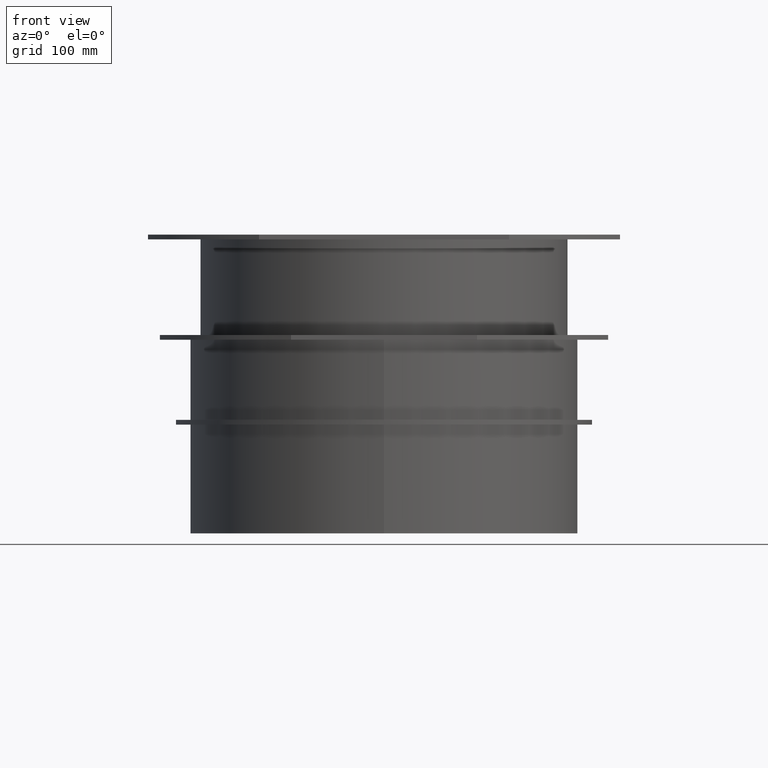
[diagram: clean part render]
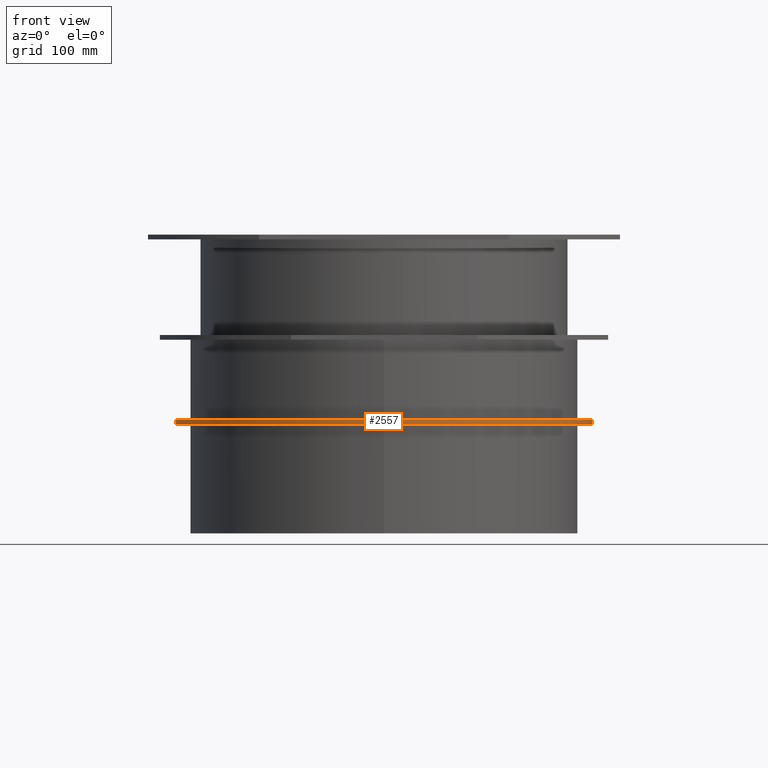
[diagram: same view with one face highlighted and labeled with its STEP entity id]
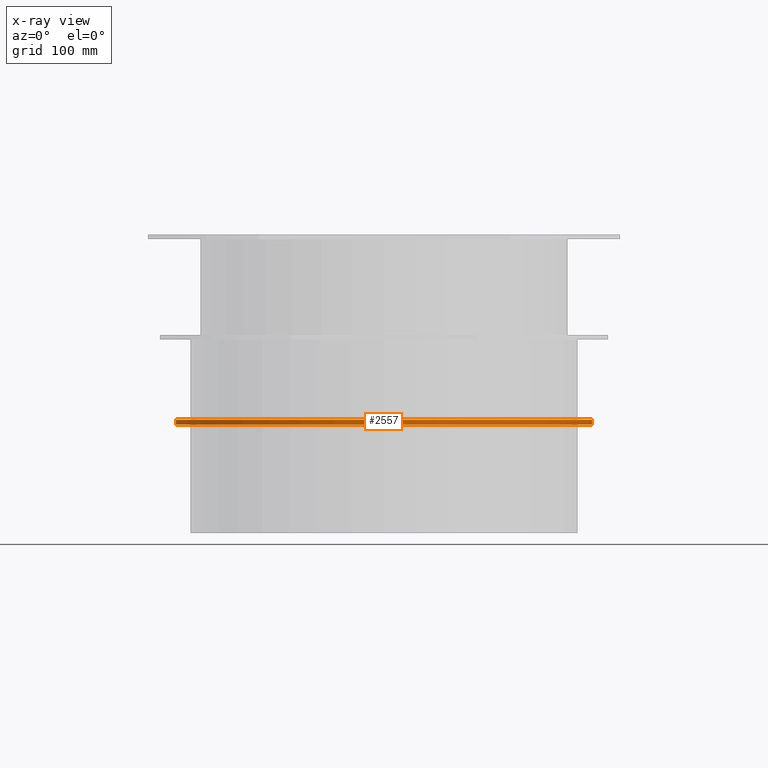
[diagram: x-ray of the same camera — body ghosted, the highlighted face saturated]
A machine part, front view. The second image highlights one B-rep face of the part: STEP entity #2557.
The next image is the same camera in x-ray: the body ghosted, the highlighted face saturated — about 0% of this face is hidden behind the body in this view.
In plain terms, the highlighted cylindrical surface (bore or boss wall) has radius 174 mm, axis along (-0, 0, -1).
Its self-contained STEP definition (entity closure, byte-faithful):
#138=CYLINDRICAL_SURFACE('',#2740,174.);
#178=FACE_OUTER_BOUND('',#328,.T.);
#328=EDGE_LOOP('',(#1732,#1733,#1734,#1735));
#498=CIRCLE('',#2741,174.);
#499=CIRCLE('',#2742,174.);
#527=LINE('',#3485,#803);
#803=VECTOR('',#2922,174.);
#1086=VERTEX_POINT('',#3482);
#1087=VERTEX_POINT('',#3484);
#1343=EDGE_CURVE('',#1086,#1086,#498,.T.);
#1344=EDGE_CURVE('',#1086,#1087,#527,.T.);
#1345=EDGE_CURVE('',#1087,#1087,#499,.T.);
#1732=ORIENTED_EDGE('',*,*,#1343,.F.);
#1733=ORIENTED_EDGE('',*,*,#1344,.T.);
#1734=ORIENTED_EDGE('',*,*,#1345,.T.);
#1735=ORIENTED_EDGE('',*,*,#1344,.F.);
#2557=ADVANCED_FACE('',(#178),#138,.T.);
#2740=AXIS2_PLACEMENT_3D('',#3481,#2918,#2919);
#2741=AXIS2_PLACEMENT_3D('',#3483,#2920,#2921);
#2742=AXIS2_PLACEMENT_3D('',#3486,#2923,#2924);
#2918=DIRECTION('center_axis',(-2.22044604925031E-16,4.93038065763132E-32,
-1.));
#2919=DIRECTION('ref_axis',(1.,-2.22044604925031E-16,-2.22044604925031E-16));
#2920=DIRECTION('center_axis',(-2.22044604925031E-16,4.93038065763132E-32,
-1.));
#2921=DIRECTION('ref_axis',(-2.22044604925031E-16,-1.,0.));
#2922=DIRECTION('',(2.22044604925031E-16,-4.93038065763132E-32,1.));
#2923=DIRECTION('center_axis',(-2.22044604925031E-16,4.93038065763132E-32,
-1.));
#2924=DIRECTION('ref_axis',(-2.22044604925031E-16,-1.,0.));
#3481=CARTESIAN_POINT('Origin',(-1.52100554373646E-14,3.37731075047746E-30,
-157.));
#3482=CARTESIAN_POINT('',(-174.,5.99446155621194E-14,-159.));
#3483=CARTESIAN_POINT('Origin',(-1.56541446472147E-14,3.47591836363008E-30,
-159.));
#3484=CARTESIAN_POINT('',(-174.,5.99446155621194E-14,-155.));
#3485=CARTESIAN_POINT('',(-174.,5.99446155621194E-14,-157.));
#3486=CARTESIAN_POINT('Origin',(-1.47659662275146E-14,3.27870313732483E-30,
-155.));